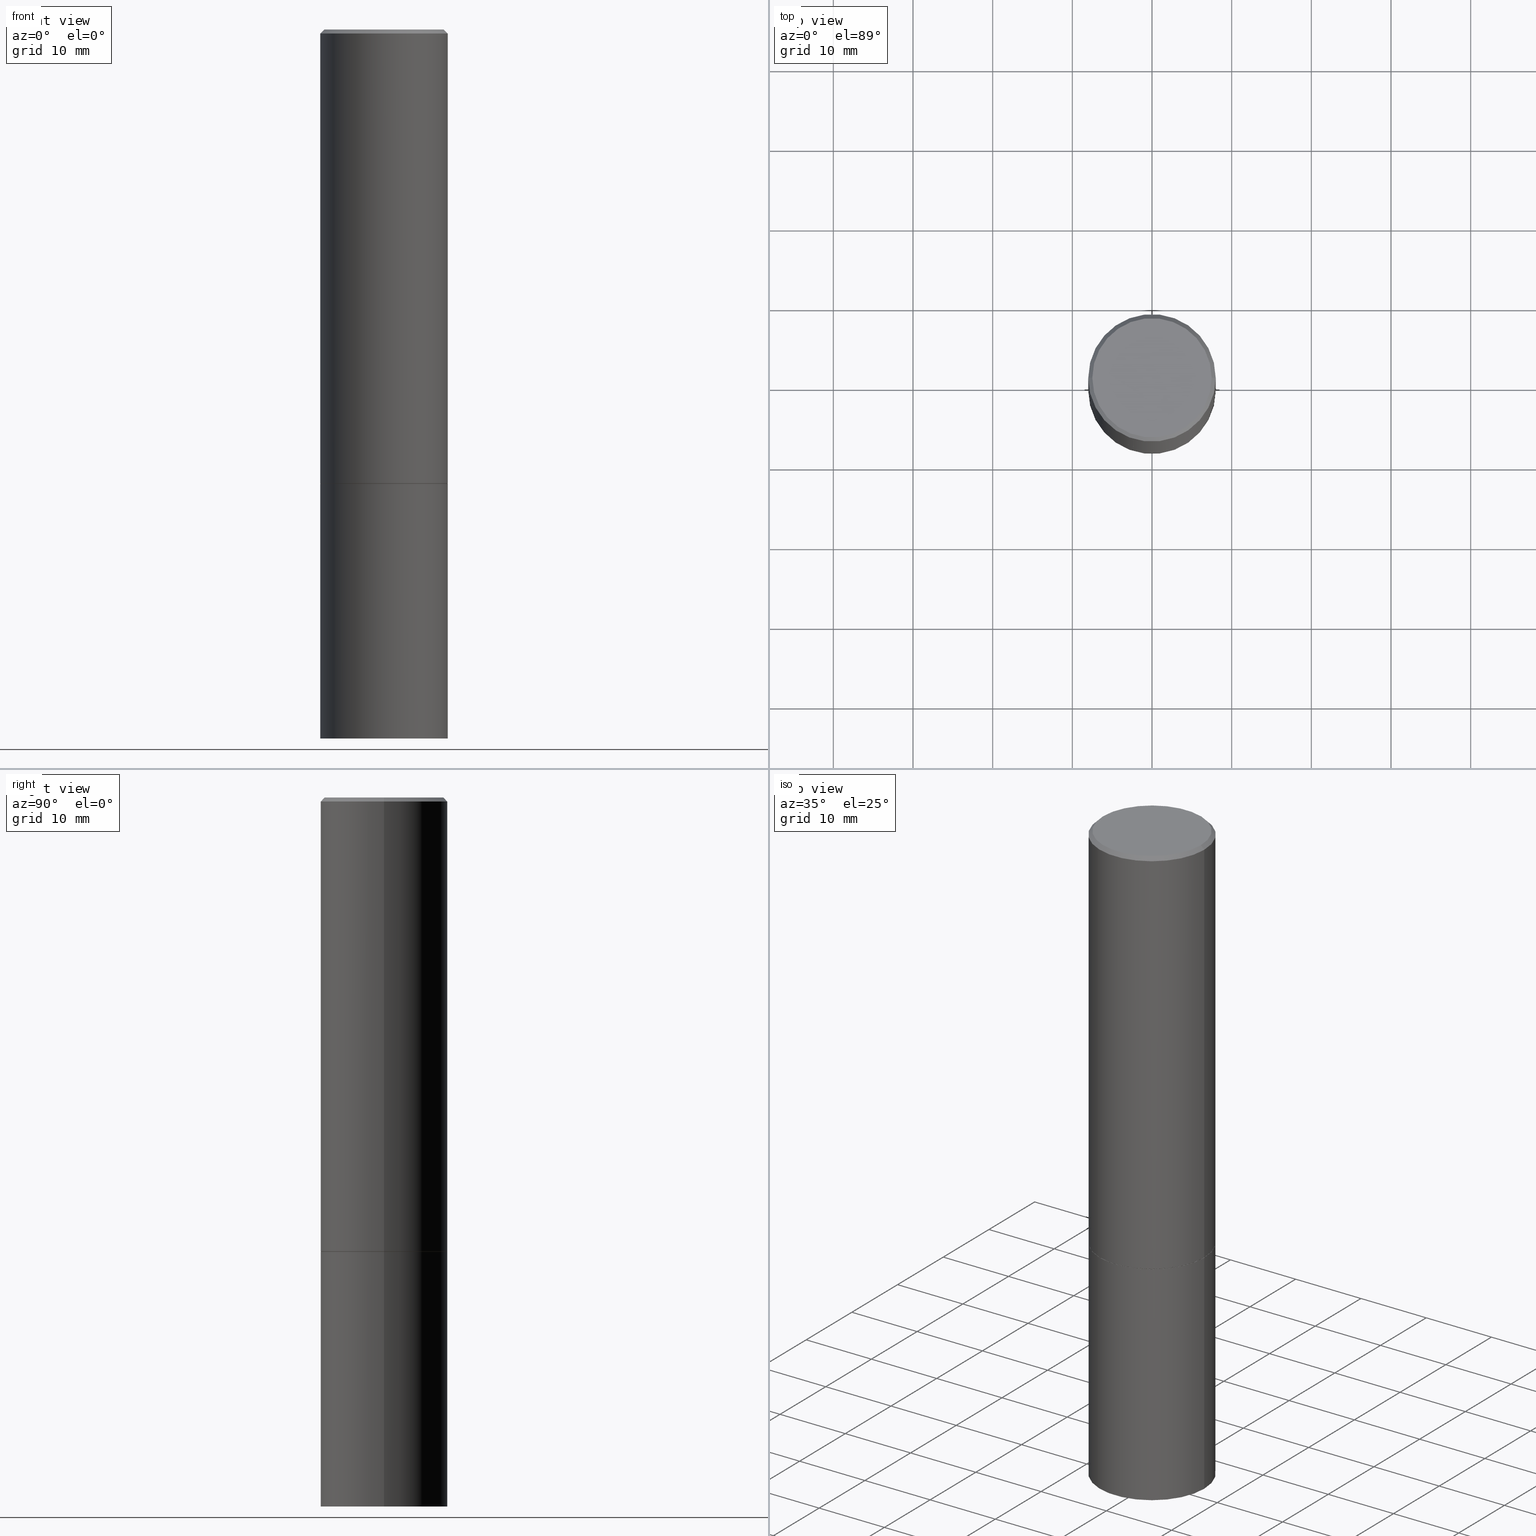
[diagram: canonical four-view strip — front | top / right | iso, engineering-drawing reading convention]
A machine part, canonical four-view strip (front | top / right | iso — engineering-drawing reading convention). The complete STEP part file that produces these views, byte-faithful:
ISO-10303-21;
HEADER;
FILE_DESCRIPTION (( 'STEP AP203' ),
    '1' );
FILE_NAME ('48517.STEP',
    '2024-02-28T11:30:29',
    ( '' ),
    ( '' ),
    'SwSTEP 2.0',
    'SolidWorks 2023',
    '' );
FILE_SCHEMA (( 'CONFIG_CONTROL_DESIGN' ));
ENDSEC;

DATA;
#1 = CARTESIAN_POINT ( 'NONE',  ( 4.890937612370290675E-31, -6.982962677686316261E-17, -0.02000000000000007327 ) ) ;
#2 = CIRCLE ( 'NONE', #277, 0.3149500000000000077 ) ;
#3 = DIRECTION ( 'NONE',  ( 0.7071067811864992780, -2.468850131081751401E-15, 0.7071067811865957564 ) ) ;
#4 = ADVANCED_FACE ( 'NONE', ( #281 ), #34, .T. ) ;
#5 = PERSON_AND_ORGANIZATION ( #238, #20 ) ;
#6 = DIRECTION ( 'NONE',  ( -0.7071067811865466846, 2.468850131082247989E-15, -0.7071067811865483499 ) ) ;
#7 = MANIFOLD_SOLID_BREP ( 'Body-Move/Copy2[2]', #203 ) ;
#8 = MANIFOLD_SOLID_BREP ( 'Body-Move/Copy2[1]', #30 ) ;
#9 = CARTESIAN_POINT ( 'NONE',  ( 2.199284095337344302E-15, 0.3149499999999921807, -2.244100000000000872 ) ) ;
#10 = CIRCLE ( 'NONE', #290, 0.3149500000000000077 ) ;
#11 = EDGE_CURVE ( 'NONE', #336, #224, #328, .T. ) ;
#12 = LOCAL_TIME ( 6, 30, 29.00000000000000000, #311 ) ;
#13 = DIRECTION ( 'NONE',  ( -2.445468806185136597E-29, 3.491481338843145583E-15, 1.000000000000000000 ) ) ;
#14 = ADVANCED_BREP_SHAPE_REPRESENTATION ( '48517', ( #8, #7, #113 ), #274 ) ;
#15 = CALENDAR_DATE ( 2024, 28, 2 ) ;
#16 = DIRECTION ( 'NONE',  ( 1.000000000000000000, -6.982962677686266711E-15, 0.000000000000000000 ) ) ;
#17 = CARTESIAN_POINT ( 'NONE',  ( 0.000000000000000000, 0.000000000000000000, 0.000000000000000000 ) ) ;
#18 = EDGE_CURVE ( 'NONE', #300, #224, #319, .T. ) ;
#19 = CC_DESIGN_SECURITY_CLASSIFICATION ( #125, ( #143 ) ) ;
#20 = ORGANIZATION ( 'UNSPECIFIED', 'UNSPECIFIED', '' ) ;
#21 = CARTESIAN_POINT ( 'NONE',  ( 0.3149499999999997302, -2.230543471175005478E-15, -0.02000000000000007327 ) ) ;
#22 = COORDINATED_UNIVERSAL_TIME_OFFSET ( 5, 0, .BEHIND. ) ;
#23 = FACE_OUTER_BOUND ( 'NONE', #134, .T. ) ;
#24 = ORIENTED_EDGE ( 'NONE', *, *, #80, .T. ) ;
#25 = CARTESIAN_POINT ( 'NONE',  ( 2.059624841783562091E-15, 0.2949499999999997124, -1.027678164646734579E-15 ) ) ;
#26 = ADVANCED_FACE ( 'NONE', ( #207 ), #68, .T. ) ;
#27 = DIRECTION ( 'NONE',  ( -0.7071067811864992780, 7.493145998870180611E-15, 0.7071067811865957564 ) ) ;
#28 = CONICAL_SURFACE ( 'NONE', #66, 0.3149499999999997302, 0.7853981633974471688 ) ;
#29 = ORIENTED_EDGE ( 'NONE', *, *, #11, .F. ) ;
#30 = CLOSED_SHELL ( 'NONE', ( #140, #4, #61, #110 ) ) ;
#31 = ORIENTED_EDGE ( 'NONE', *, *, #194, .F. ) ;
#32 = ORIENTED_EDGE ( 'NONE', *, *, #230, .T. ) ;
#33 = ORIENTED_EDGE ( 'NONE', *, *, #201, .F. ) ;
#34 = PLANE ( 'NONE',  #351 ) ;
#35 = APPROVAL_PERSON_ORGANIZATION ( #234, #133, #94 ) ;
#36 = CYLINDRICAL_SURFACE ( 'NONE', #65, 0.3149500000000000077 ) ;
#37 = DIRECTION ( 'NONE',  ( -1.000000000000000000, 6.982962677686266711E-15, 0.000000000000000000 ) ) ;
#38 = PERSON_AND_ORGANIZATION_ROLE ( 'design_owner' ) ;
#39 = DIRECTION ( 'NONE',  ( 2.438088387897960049E-29, -3.491481338843145188E-15, -1.000000000000000000 ) ) ;
#40 = CIRCLE ( 'NONE', #283, 0.3149500000000000077 ) ;
#41 = CIRCLE ( 'NONE', #284, 0.3139500000000000624 ) ;
#42 = PERSON_AND_ORGANIZATION ( #238, #20 ) ;
#43 = CARTESIAN_POINT ( 'NONE',  ( 5.487876547960064752E-29, -7.835233272497900762E-15, -2.244099999999999540 ) ) ;
#44 = CYLINDRICAL_SURFACE ( 'NONE', #253, 0.3149499999999998967 ) ;
#45 = DIRECTION ( 'NONE',  ( 1.000000000000000000, -6.982962677686266711E-15, 0.000000000000000000 ) ) ;
#46 = ORIENTED_EDGE ( 'NONE', *, *, #18, .F. ) ;
#47 = SECURITY_CLASSIFICATION_LEVEL ( 'unclassified' ) ;
#48 = CARTESIAN_POINT ( 'NONE',  ( 4.890937612370290675E-31, -6.982962677686316261E-17, -0.02000000000000007327 ) ) ;
#49 = EDGE_LOOP ( 'NONE', ( #304, #109, #195, #29 ) ) ;
#50 = EDGE_CURVE ( 'NONE', #297, #362, #10, .T. ) ;
#51 = DATE_TIME_ROLE ( 'classification_date' ) ;
#52 = DIRECTION ( 'NONE',  ( -2.445468806185136597E-29, 3.491481338843145583E-15, 1.000000000000000000 ) ) ;
#53 = CC_DESIGN_PERSON_AND_ORGANIZATION_ASSIGNMENT ( #145, #115, ( #181 ) ) ;
#54 = ORIENTED_EDGE ( 'NONE', *, *, #227, .T. ) ;
#55 = ORIENTED_EDGE ( 'NONE', *, *, #136, .T. ) ;
#56 = UNCERTAINTY_MEASURE_WITH_UNIT (LENGTH_MEASURE( 1.000000000000000082E-05 ), #278, 'distance_accuracy_value', 'NONE');
#57 = AXIS2_PLACEMENT_3D ( 'NONE', #1, #112, #316 ) ;
#58 = ORIENTED_EDGE ( 'NONE', *, *, #169, .F. ) ;
#59 = CONICAL_SURFACE ( 'NONE', #131, 0.3139500000000000624, 0.7853981633973801113 ) ;
#60 = ORIENTED_EDGE ( 'NONE', *, *, #127, .T. ) ;
#61 = ADVANCED_FACE ( 'NONE', ( #350 ), #289, .F. ) ;
#62 = EDGE_LOOP ( 'NONE', ( #219, #310 ) ) ;
#63 = CALENDAR_DATE ( 2024, 28, 2 ) ;
#64 = CARTESIAN_POINT ( 'NONE',  ( -0.3149499999999997302, 2.129454468560424601E-15, -0.02000000000000007327 ) ) ;
#65 = AXIS2_PLACEMENT_3D ( 'NONE', #254, #288, #258 ) ;
#66 = AXIS2_PLACEMENT_3D ( 'NONE', #71, #144, #37 ) ;
#67 = EDGE_CURVE ( 'NONE', #86, #362, #120, .T. ) ;
#68 = CYLINDRICAL_SURFACE ( 'NONE', #163, 0.3149499999999998967 ) ;
#69 = DIRECTION ( 'NONE',  ( -2.445468806185136877E-29, 3.491481338843145188E-15, 1.000000000000000000 ) ) ;
#70 = DATE_AND_TIME ( #15, #240 ) ;
#71 = CARTESIAN_POINT ( 'NONE',  ( 4.890937612370290675E-31, -6.982962677686316261E-17, -0.02000000000000007327 ) ) ;
#72 = CONICAL_SURFACE ( 'NONE', #78, 0.3149499999999997302, 0.7853981633974471688 ) ;
#73 = PERSON_AND_ORGANIZATION ( #238, #20 ) ;
#74 = DIRECTION ( 'NONE',  ( 1.000000000000000000, -6.982962677686266711E-15, 0.000000000000000000 ) ) ;
#75 = DIRECTION ( 'NONE',  ( 2.445468806185136597E-29, -3.491481338843145583E-15, -1.000000000000000000 ) ) ;
#76 = CARTESIAN_POINT ( 'NONE',  ( 0.3149500000000000077, -1.003102588649634920E-14, -2.243099999999999650 ) ) ;
#77 = DATE_AND_TIME ( #183, #363 ) ;
#78 = AXIS2_PLACEMENT_3D ( 'NONE', #156, #75, #128 ) ;
#79 = FACE_OUTER_BOUND ( 'NONE', #200, .T. ) ;
#80 = EDGE_CURVE ( 'NONE', #226, #129, #357, .T. ) ;
#81 = CALENDAR_DATE ( 2024, 28, 2 ) ;
#82 = DIRECTION ( 'NONE',  ( -2.445468806185136877E-29, 3.491481338843145188E-15, 1.000000000000000000 ) ) ;
#83 = CC_DESIGN_PERSON_AND_ORGANIZATION_ASSIGNMENT ( #73, #215, ( #143 ) ) ;
#84 = CC_DESIGN_APPROVAL ( #133, ( #143 ) ) ;
#85 = ORIENTED_EDGE ( 'NONE', *, *, #169, .T. ) ;
#86 = VERTEX_POINT ( 'NONE', #205 ) ;
#87 = ORIENTED_EDGE ( 'NONE', *, *, #50, .F. ) ;
#88 = CIRCLE ( 'NONE', #232, 0.3149500000000000077 ) ;
#89 = EDGE_LOOP ( 'NONE', ( #33, #160 ) ) ;
#90 = FACE_OUTER_BOUND ( 'NONE', #135, .T. ) ;
#91 = CARTESIAN_POINT ( 'NONE',  ( 0.3139500000000000624, -1.002753440515750620E-14, -2.244099999999999540 ) ) ;
#92 = DATE_AND_TIME ( #343, #12 ) ;
#93 = CARTESIAN_POINT ( 'NONE',  ( -0.3149500000000000077, 2.237854346276435590E-15, -1.549218606675782676E-29 ) ) ;
#94 = APPROVAL_ROLE ( '' ) ;
#95 = FACE_OUTER_BOUND ( 'NONE', #366, .T. ) ;
#96 = DIRECTION ( 'NONE',  ( 1.000000000000000000, -6.982962677686268288E-15, 0.000000000000000000 ) ) ;
#97 = CARTESIAN_POINT ( 'NONE',  ( -0.3149499999999998967, 2.237854346276434801E-15, -1.549218606675782116E-29 ) ) ;
#98 = CC_DESIGN_PERSON_AND_ORGANIZATION_ASSIGNMENT ( #264, #152, ( #125 ) ) ;
#99 = LINE ( 'NONE', #21, #225 ) ;
#100 = VECTOR ( 'NONE', #117, 39.37007874015748143 ) ;
#101 = CIRCLE ( 'NONE', #309, 0.3149499999999997302 ) ;
#102 = DIRECTION ( 'NONE',  ( 1.000000000000000000, -6.982962677686268288E-15, 0.000000000000000000 ) ) ;
#103 = DIRECTION ( 'NONE',  ( 1.000000000000000000, -6.982962677686266711E-15, 0.000000000000000000 ) ) ;
#104 =( NAMED_UNIT ( * ) PLANE_ANGLE_UNIT ( ) SI_UNIT ( $, .RADIAN. ) );
#105 = ORIENTED_EDGE ( 'NONE', *, *, #217, .F. ) ;
#106 =( NAMED_UNIT ( * ) SI_UNIT ( $, .STERADIAN. ) SOLID_ANGLE_UNIT ( ) );
#107 = CONICAL_SURFACE ( 'NONE', #192, 0.3139500000000000624, 0.7853981633973801113 ) ;
#108 = ORIENTED_EDGE ( 'NONE', *, *, #280, .T. ) ;
#109 = ORIENTED_EDGE ( 'NONE', *, *, #271, .T. ) ;
#110 = ADVANCED_FACE ( 'NONE', ( #90 ), #151, .T. ) ;
#111 = ORIENTED_EDGE ( 'NONE', *, *, #136, .F. ) ;
#112 = DIRECTION ( 'NONE',  ( -2.445468806185136597E-29, 3.491481338843145583E-15, 1.000000000000000000 ) ) ;
#113 = AXIS2_PLACEMENT_3D ( 'NONE', #170, #318, #199 ) ;
#114 = CARTESIAN_POINT ( 'NONE',  ( -0.2949499999999997124, 2.094539655171993740E-15, 4.268512490085885145E-18 ) ) ;
#115 = PERSON_AND_ORGANIZATION_ROLE ( 'creator' ) ;
#116 = LINE ( 'NONE', #91, #334 ) ;
#117 = DIRECTION ( 'NONE',  ( -2.445468806185136877E-29, 3.491481338843145188E-15, 1.000000000000000000 ) ) ;
#118 = VECTOR ( 'NONE', #27, 39.37007874015748143 ) ;
#119 = APPROVAL_STATUS ( 'not_yet_approved' ) ;
#120 = LINE ( 'NONE', #93, #100 ) ;
#121 = PERSON_AND_ORGANIZATION ( #238, #20 ) ;
#122 = CARTESIAN_POINT ( 'NONE',  ( 0.000000000000000000, 0.000000000000000000, 0.000000000000000000 ) ) ;
#123 = FACE_OUTER_BOUND ( 'NONE', #196, .T. ) ;
#124 = AXIS2_PLACEMENT_3D ( 'NONE', #292, #13, #148 ) ;
#125 = SECURITY_CLASSIFICATION ( '', '', #47 ) ;
#126 = DIRECTION ( 'NONE',  ( -2.445468806185136877E-29, 3.491481338843145188E-15, 1.000000000000000000 ) ) ;
#127 = EDGE_CURVE ( 'NONE', #86, #161, #40, .T. ) ;
#128 = DIRECTION ( 'NONE',  ( -1.000000000000000000, 6.982962677686266711E-15, 0.000000000000000000 ) ) ;
#129 = VERTEX_POINT ( 'NONE', #349 ) ;
#130 = DIRECTION ( 'NONE',  ( 2.438088387897960049E-29, -3.491481338843145188E-15, -1.000000000000000000 ) ) ;
#131 = AXIS2_PLACEMENT_3D ( 'NONE', #241, #155, #295 ) ;
#132 = CARTESIAN_POINT ( 'NONE',  ( 8.568678149992099474E-29, -1.223380146317249786E-14, -3.503899999999999793 ) ) ;
#133 = APPROVAL ( #347, 'UNSPECIFIED' ) ;
#134 = EDGE_LOOP ( 'NONE', ( #166, #249, #55, #338 ) ) ;
#135 = EDGE_LOOP ( 'NONE', ( #223, #60, #32, #105 ) ) ;
#136 = EDGE_CURVE ( 'NONE', #226, #336, #229, .T. ) ;
#137 = ORIENTED_EDGE ( 'NONE', *, *, #323, .T. ) ;
#138 = CARTESIAN_POINT ( 'NONE',  ( 2.199284095337375068E-15, 0.3149499999999877953, -3.503900000000000681 ) ) ;
#139 = APPLICATION_PROTOCOL_DEFINITION ( 'international standard', 'config_control_design', 1994, #317 ) ;
#140 = ADVANCED_FACE ( 'NONE', ( #95 ), #36, .T. ) ;
#141 = AXIS2_PLACEMENT_3D ( 'NONE', #9, #39, #173 ) ;
#142 = CARTESIAN_POINT ( 'NONE',  ( -1.043851414335219820E-46, 1.490343170380447200E-32, 4.268512490100411279E-18 ) ) ;
#143 = PRODUCT_DEFINITION_FORMATION_WITH_SPECIFIED_SOURCE ( 'ANY', '', #320, .NOT_KNOWN. ) ;
#144 = DIRECTION ( 'NONE',  ( 2.445468806185136597E-29, -3.491481338843145583E-15, -1.000000000000000000 ) ) ;
#145 = PERSON_AND_ORGANIZATION ( #238, #20 ) ;
#146 = DIRECTION ( 'NONE',  ( 1.000000000000000000, -6.982962677686267499E-15, 4.876053491004739391E-29 ) ) ;
#147 = APPROVAL_ROLE ( '' ) ;
#148 = DIRECTION ( 'NONE',  ( 1.000000000000000000, -6.982962677686266711E-15, 4.876176775795936353E-29 ) ) ;
#149 = AXIS2_PLACEMENT_3D ( 'NONE', #242, #186, #294 ) ;
#150 = CC_DESIGN_PERSON_AND_ORGANIZATION_ASSIGNMENT ( #42, #38, ( #320 ) ) ;
#151 = CYLINDRICAL_SURFACE ( 'NONE', #124, 0.3149500000000000077 ) ;
#152 = PERSON_AND_ORGANIZATION_ROLE ( 'classification_officer' ) ;
#153 = CARTESIAN_POINT ( 'NONE',  ( 5.487876547960064752E-29, -7.835233272497900762E-15, -2.244099999999999540 ) ) ;
#154 = DIRECTION ( 'NONE',  ( -2.445468806185136597E-29, 3.491481338843145583E-15, 1.000000000000000000 ) ) ;
#155 = DIRECTION ( 'NONE',  ( -2.445468806185136597E-29, 3.491481338843145583E-15, 1.000000000000000000 ) ) ;
#156 = CARTESIAN_POINT ( 'NONE',  ( 4.890937612370290675E-31, -6.982962677686316261E-17, -0.02000000000000007327 ) ) ;
#157 = CARTESIAN_POINT ( 'NONE',  ( 0.3149500000000000077, -1.003451736783519063E-14, -2.244099999999999540 ) ) ;
#158 = VECTOR ( 'NONE', #6, 39.37007874015748143 ) ;
#159 = VECTOR ( 'NONE', #126, 39.37007874015748143 ) ;
#160 = ORIENTED_EDGE ( 'NONE', *, *, #227, .F. ) ;
#161 = VERTEX_POINT ( 'NONE', #346 ) ;
#162 = EDGE_CURVE ( 'NONE', #279, #300, #116, .T. ) ;
#163 = AXIS2_PLACEMENT_3D ( 'NONE', #122, #202, #174 ) ;
#164 = APPROVAL_PERSON_ORGANIZATION ( #5, #257, #147 ) ;
#165 = EDGE_LOOP ( 'NONE', ( #85, #137, #212, #46 ) ) ;
#166 = ORIENTED_EDGE ( 'NONE', *, *, #280, .F. ) ;
#167 = MECHANICAL_CONTEXT ( 'NONE', #246, 'mechanical' ) ;
#168 = ORIENTED_EDGE ( 'NONE', *, *, #348, .T. ) ;
#169 = EDGE_CURVE ( 'NONE', #300, #222, #171, .T. ) ;
#170 = CARTESIAN_POINT ( 'NONE',  ( 0.000000000000000000, 0.000000000000000000, 0.000000000000000000 ) ) ;
#171 = CIRCLE ( 'NONE', #220, 0.3149500000000000077 ) ;
#172 = CARTESIAN_POINT ( 'NONE',  ( 5.485431079153879149E-29, -7.831741791159059333E-15, -2.243099999999999650 ) ) ;
#173 = DIRECTION ( 'NONE',  ( -1.000000000000000000, 6.982962677686265922E-15, -4.876176775795935793E-29 ) ) ;
#174 = DIRECTION ( 'NONE',  ( 1.000000000000000000, -6.982962677686265922E-15, 4.876176775795935232E-29 ) ) ;
#175 = ADVANCED_FACE ( 'NONE', ( #322 ), #28, .T. ) ;
#176 = APPROVAL_DATE_TIME ( #70, #133 ) ;
#177 = CARTESIAN_POINT ( 'NONE',  ( 5.487876547960064752E-29, -7.835233272497900762E-15, -2.244099999999999540 ) ) ;
#178 = CIRCLE ( 'NONE', #269, 0.2949499999999997124 ) ;
#179 = AXIS2_PLACEMENT_3D ( 'NONE', #132, #359, #218 ) ;
#180 = CARTESIAN_POINT ( 'NONE',  ( -0.3149500000000000077, -1.712931362691523950E-15, -2.243099999999999650 ) ) ;
#181 = PRODUCT_DEFINITION ( 'UNKNOWN', '', #143, #188 ) ;
#182 = CARTESIAN_POINT ( 'NONE',  ( -0.3139500000000000624, -5.599185899230844172E-15, -2.244099999999999540 ) ) ;
#183 = CALENDAR_DATE ( 2024, 28, 2 ) ;
#184 = CARTESIAN_POINT ( 'NONE',  ( 0.3149500000000000077, -2.199284095337289871E-15, 1.535751875536930130E-29 ) ) ;
#185 = EDGE_LOOP ( 'NONE', ( #24, #361 ) ) ;
#186 = DIRECTION ( 'NONE',  ( -2.445468806185136597E-29, 3.491481338843145583E-15, 1.000000000000000000 ) ) ;
#187 = DATE_AND_TIME ( #81, #221 ) ;
#188 = DESIGN_CONTEXT ( 'detailed design', #317, 'design' ) ;
#189 = LINE ( 'NONE', #301, #118 ) ;
#190 = CC_DESIGN_DATE_AND_TIME_ASSIGNMENT ( #77, #51, ( #125 ) ) ;
#191 = FACE_OUTER_BOUND ( 'NONE', #165, .T. ) ;
#192 = AXIS2_PLACEMENT_3D ( 'NONE', #153, #273, #102 ) ;
#193 = EDGE_LOOP ( 'NONE', ( #275, #250 ) ) ;
#194 = EDGE_CURVE ( 'NONE', #129, #226, #178, .T. ) ;
#195 = ORIENTED_EDGE ( 'NONE', *, *, #18, .T. ) ;
#196 = EDGE_LOOP ( 'NONE', ( #276, #54, #198, #333 ) ) ;
#197 = CIRCLE ( 'NONE', #179, 0.3149500000000000077 ) ;
#198 = ORIENTED_EDGE ( 'NONE', *, *, #162, .T. ) ;
#199 = DIRECTION ( 'NONE',  ( 1.000000000000000000, 0.000000000000000000, 0.000000000000000000 ) ) ;
#200 = EDGE_LOOP ( 'NONE', ( #305, #248, #58, #365 ) ) ;
#201 = EDGE_CURVE ( 'NONE', #279, #282, #41, .T. ) ;
#202 = DIRECTION ( 'NONE',  ( -2.445468806185136597E-29, 3.491481338843145583E-15, 1.000000000000000000 ) ) ;
#203 = CLOSED_SHELL ( 'NONE', ( #285, #364, #175, #296, #26, #307, #243, #332 ) ) ;
#204 = DIRECTION ( 'NONE',  ( -2.445468806185136597E-29, 3.491481338843145583E-15, 1.000000000000000000 ) ) ;
#205 = CARTESIAN_POINT ( 'NONE',  ( -0.3149500000000000077, -7.796663021558764114E-15, -3.503899999999999793 ) ) ;
#206 = DIMENSIONAL_EXPONENTS ( 1.000000000000000000, 0.000000000000000000, 0.000000000000000000, 0.000000000000000000, 0.000000000000000000, 0.000000000000000000, 0.000000000000000000 ) ;
#207 = FACE_OUTER_BOUND ( 'NONE', #49, .T. ) ;
#208 = DIRECTION ( 'NONE',  ( -2.445468806185136597E-29, 3.491481338843145583E-15, 1.000000000000000000 ) ) ;
#209 = PERSON_AND_ORGANIZATION_ROLE ( 'creator' ) ;
#210 =( LENGTH_UNIT ( ) NAMED_UNIT ( * ) SI_UNIT ( $, .METRE. ) );
#211 = LINE ( 'NONE', #184, #159 ) ;
#212 = ORIENTED_EDGE ( 'NONE', *, *, #265, .F. ) ;
#213 = PLANE ( 'NONE',  #352 ) ;
#214 = CC_DESIGN_APPROVAL ( #303, ( #125 ) ) ;
#215 = PERSON_AND_ORGANIZATION_ROLE ( 'design_supplier' ) ;
#216 = CARTESIAN_POINT ( 'NONE',  ( -0.3149499999999997302, 2.129454468560424601E-15, -0.02000000000000007327 ) ) ;
#217 = EDGE_CURVE ( 'NONE', #362, #297, #88, .T. ) ;
#218 = DIRECTION ( 'NONE',  ( 1.000000000000000000, -6.982962677686263555E-15, 0.000000000000000000 ) ) ;
#219 = ORIENTED_EDGE ( 'NONE', *, *, #50, .T. ) ;
#220 = AXIS2_PLACEMENT_3D ( 'NONE', #172, #204, #16 ) ;
#221 = LOCAL_TIME ( 6, 30, 29.00000000000000000, #22 ) ;
#222 = VERTEX_POINT ( 'NONE', #180 ) ;
#223 = ORIENTED_EDGE ( 'NONE', *, *, #67, .F. ) ;
#224 = VERTEX_POINT ( 'NONE', #293 ) ;
#225 = VECTOR ( 'NONE', #356, 39.37007874015748143 ) ;
#226 = VERTEX_POINT ( 'NONE', #114 ) ;
#227 = EDGE_CURVE ( 'NONE', #282, #279, #291, .T. ) ;
#228 = CARTESIAN_POINT ( 'NONE',  ( 0.3149499999999998967, -2.199284095337288688E-15, 1.535751875536929289E-29 ) ) ;
#229 = LINE ( 'NONE', #64, #158 ) ;
#230 = EDGE_CURVE ( 'NONE', #161, #297, #211, .T. ) ;
#231 = DATE_AND_TIME ( #63, #302 ) ;
#232 = AXIS2_PLACEMENT_3D ( 'NONE', #43, #233, #74 ) ;
#233 = DIRECTION ( 'NONE',  ( -2.445468806185136597E-29, 3.491481338843145583E-15, 1.000000000000000000 ) ) ;
#234 = PERSON_AND_ORGANIZATION ( #238, #20 ) ;
#235 = DIRECTION ( 'NONE',  ( 1.000000000000000000, -6.982962677686263555E-15, 0.000000000000000000 ) ) ;
#236 = DIRECTION ( 'NONE',  ( -2.445468806185136597E-29, 3.491481338843145583E-15, 1.000000000000000000 ) ) ;
#237 = APPROVAL_ROLE ( '' ) ;
#238 = PERSON ( 'UNSPECIFIED', 'UNSPECIFIED', 'UNSPECIFIED', ('UNSPECIFIED'), ('UNSPECIFIED'), ('UNSPECIFIED') ) ;
#239 = DIRECTION ( 'NONE',  ( 1.000000000000000000, -6.982962677686265922E-15, 4.876176775795935232E-29 ) ) ;
#240 = LOCAL_TIME ( 6, 30, 29.00000000000000000, #321 ) ;
#241 = CARTESIAN_POINT ( 'NONE',  ( 5.487876547960064752E-29, -7.835233272497900762E-15, -2.244099999999999540 ) ) ;
#242 = CARTESIAN_POINT ( 'NONE',  ( 5.487876547960064752E-29, -7.835233272497900762E-15, -2.244099999999999540 ) ) ;
#243 = ADVANCED_FACE ( 'NONE', ( #245 ), #213, .F. ) ;
#244 = DIRECTION ( 'NONE',  ( -1.000000000000000000, 6.982962677686265922E-15, -4.876176775795935793E-29 ) ) ;
#245 = FACE_OUTER_BOUND ( 'NONE', #89, .T. ) ;
#246 = APPLICATION_CONTEXT ( 'configuration controlled 3d designs of mechanical parts and assemblies' ) ;
#247 = DIRECTION ( 'NONE',  ( 2.438088387897960049E-29, -3.491481338843145188E-15, -1.000000000000000000 ) ) ;
#248 = ORIENTED_EDGE ( 'NONE', *, *, #337, .T. ) ;
#249 = ORIENTED_EDGE ( 'NONE', *, *, #80, .F. ) ;
#250 = ORIENTED_EDGE ( 'NONE', *, *, #127, .F. ) ;
#251 = CC_DESIGN_DATE_AND_TIME_ASSIGNMENT ( #92, #259, ( #181 ) ) ;
#252 = DIRECTION ( 'NONE',  ( -1.000000000000000000, 6.982962677686265922E-15, -4.876176775795935793E-29 ) ) ;
#253 = AXIS2_PLACEMENT_3D ( 'NONE', #17, #154, #239 ) ;
#254 = CARTESIAN_POINT ( 'NONE',  ( 0.000000000000000000, 0.000000000000000000, 0.000000000000000000 ) ) ;
#255 = APPLICATION_PROTOCOL_DEFINITION ( 'international standard', 'config_control_design', 1994, #246 ) ;
#256 = DIRECTION ( 'NONE',  ( -2.445468806185136597E-29, 3.491481338843145583E-15, 1.000000000000000000 ) ) ;
#257 = APPROVAL ( #119, 'UNSPECIFIED' ) ;
#258 = DIRECTION ( 'NONE',  ( 1.000000000000000000, -6.982962677686266711E-15, 4.876176775795936353E-29 ) ) ;
#259 = DATE_TIME_ROLE ( 'creation_date' ) ;
#260 = VECTOR ( 'NONE', #69, 39.37007874015748143 ) ;
#261 = CARTESIAN_POINT ( 'NONE',  ( -1.043851414335219820E-46, 1.490343170380447200E-32, 4.268512490100411279E-18 ) ) ;
#262 = PRODUCT_DEFINITION_SHAPE ( 'NONE', 'NONE',  #181 ) ;
#263 = DIRECTION ( 'NONE',  ( -2.445468806185136597E-29, 3.491481338843145583E-15, 1.000000000000000000 ) ) ;
#264 = PERSON_AND_ORGANIZATION ( #238, #20 ) ;
#265 = EDGE_CURVE ( 'NONE', #224, #336, #101, .T. ) ;
#266 = CARTESIAN_POINT ( 'NONE',  ( 5.485431079153879149E-29, -7.831741791159059333E-15, -2.243099999999999650 ) ) ;
#267 = APPROVAL_DATE_TIME ( #187, #303 ) ;
#268 = LENGTH_MEASURE_WITH_UNIT ( LENGTH_MEASURE( 0.02539999999999999897 ), #210 );
#269 = AXIS2_PLACEMENT_3D ( 'NONE', #261, #236, #146 ) ;
#270 = CARTESIAN_POINT ( 'NONE',  ( 5.487876547960064752E-29, -7.835233272497900762E-15, -2.244099999999999540 ) ) ;
#271 = EDGE_CURVE ( 'NONE', #222, #300, #2, .T. ) ;
#272 = PLANE ( 'NONE',  #358 ) ;
#273 = DIRECTION ( 'NONE',  ( -2.445468806185136597E-29, 3.491481338843145583E-15, 1.000000000000000000 ) ) ;
#274 =( GEOMETRIC_REPRESENTATION_CONTEXT ( 3 ) GLOBAL_UNCERTAINTY_ASSIGNED_CONTEXT ( ( #56 ) ) GLOBAL_UNIT_ASSIGNED_CONTEXT ( ( #278, #104, #106 ) ) REPRESENTATION_CONTEXT ( 'NONE', 'WORKASPACE' ) );
#275 = ORIENTED_EDGE ( 'NONE', *, *, #348, .F. ) ;
#276 = ORIENTED_EDGE ( 'NONE', *, *, #337, .F. ) ;
#277 = AXIS2_PLACEMENT_3D ( 'NONE', #266, #330, #45 ) ;
#278 =( CONVERSION_BASED_UNIT ( 'INCH', #268 ) LENGTH_UNIT ( ) NAMED_UNIT ( #206 ) );
#279 = VERTEX_POINT ( 'NONE', #327 ) ;
#280 = EDGE_CURVE ( 'NONE', #129, #224, #99, .T. ) ;
#281 = FACE_OUTER_BOUND ( 'NONE', #193, .T. ) ;
#282 = VERTEX_POINT ( 'NONE', #182 ) ;
#283 = AXIS2_PLACEMENT_3D ( 'NONE', #342, #324, #235 ) ;
#284 = AXIS2_PLACEMENT_3D ( 'NONE', #177, #256, #96 ) ;
#285 = ADVANCED_FACE ( 'NONE', ( #79 ), #59, .T. ) ;
#286 = DIRECTION ( 'NONE',  ( 1.000000000000000000, -6.982962677686267499E-15, 4.876053491004739391E-29 ) ) ;
#287 = COORDINATED_UNIVERSAL_TIME_OFFSET ( 5, 0, .BEHIND. ) ;
#288 = DIRECTION ( 'NONE',  ( -2.445468806185136597E-29, 3.491481338843145583E-15, 1.000000000000000000 ) ) ;
#289 = PLANE ( 'NONE',  #141 ) ;
#290 = AXIS2_PLACEMENT_3D ( 'NONE', #344, #208, #314 ) ;
#291 = CIRCLE ( 'NONE', #149, 0.3139500000000000624 ) ;
#292 = CARTESIAN_POINT ( 'NONE',  ( 0.000000000000000000, 0.000000000000000000, 0.000000000000000000 ) ) ;
#293 = CARTESIAN_POINT ( 'NONE',  ( 0.3149499999999997302, -2.230543471175005478E-15, -0.02000000000000007327 ) ) ;
#294 = DIRECTION ( 'NONE',  ( 1.000000000000000000, -6.982962677686268288E-15, 0.000000000000000000 ) ) ;
#295 = DIRECTION ( 'NONE',  ( 1.000000000000000000, -6.982962677686268288E-15, 0.000000000000000000 ) ) ;
#296 = ADVANCED_FACE ( 'NONE', ( #23 ), #72, .T. ) ;
#297 = VERTEX_POINT ( 'NONE', #157 ) ;
#298 = COORDINATED_UNIVERSAL_TIME_OFFSET ( 5, 0, .BEHIND. ) ;
#299 = DIRECTION ( 'NONE',  ( -2.438088387897960049E-29, 3.491481338843145188E-15, 1.000000000000000000 ) ) ;
#300 = VERTEX_POINT ( 'NONE', #76 ) ;
#301 = CARTESIAN_POINT ( 'NONE',  ( -0.3139500000000000624, -5.604484353579066574E-15, -2.244099999999999540 ) ) ;
#302 = LOCAL_TIME ( 6, 30, 29.00000000000000000, #287 ) ;
#303 = APPROVAL ( #329, 'UNSPECIFIED' ) ;
#304 = ORIENTED_EDGE ( 'NONE', *, *, #323, .F. ) ;
#305 = ORIENTED_EDGE ( 'NONE', *, *, #201, .T. ) ;
#306 = ORIENTED_EDGE ( 'NONE', *, *, #265, .T. ) ;
#307 = ADVANCED_FACE ( 'NONE', ( #123 ), #107, .T. ) ;
#308 = AXIS2_PLACEMENT_3D ( 'NONE', #142, #263, #286 ) ;
#309 = AXIS2_PLACEMENT_3D ( 'NONE', #48, #52, #103 ) ;
#310 = ORIENTED_EDGE ( 'NONE', *, *, #217, .T. ) ;
#311 = COORDINATED_UNIVERSAL_TIME_OFFSET ( 5, 0, .BEHIND. ) ;
#312 = ORIENTED_EDGE ( 'NONE', *, *, #67, .T. ) ;
#313 = PRODUCT_RELATED_PRODUCT_CATEGORY ( 'detail', '', ( #320 ) ) ;
#314 = DIRECTION ( 'NONE',  ( 1.000000000000000000, -6.982962677686266711E-15, 0.000000000000000000 ) ) ;
#315 = CC_DESIGN_APPROVAL ( #257, ( #181 ) ) ;
#316 = DIRECTION ( 'NONE',  ( 1.000000000000000000, -6.982962677686266711E-15, 0.000000000000000000 ) ) ;
#317 = APPLICATION_CONTEXT ( 'configuration controlled 3d designs of mechanical parts and assemblies' ) ;
#318 = DIRECTION ( 'NONE',  ( 0.000000000000000000, 0.000000000000000000, 1.000000000000000000 ) ) ;
#319 = LINE ( 'NONE', #228, #260 ) ;
#320 = PRODUCT ( '48517', '48517', '', ( #167 ) ) ;
#321 = COORDINATED_UNIVERSAL_TIME_OFFSET ( 5, 0, .BEHIND. ) ;
#322 = FACE_OUTER_BOUND ( 'NONE', #341, .T. ) ;
#323 = EDGE_CURVE ( 'NONE', #222, #336, #353, .T. ) ;
#324 = DIRECTION ( 'NONE',  ( -2.445468806185136597E-29, 3.491481338843145583E-15, 1.000000000000000000 ) ) ;
#325 = SHAPE_DEFINITION_REPRESENTATION ( #262, #14 ) ;
#326 = DIRECTION ( 'NONE',  ( 1.000000000000000000, -6.982962677686265922E-15, 4.876176775795935793E-29 ) ) ;
#327 = CARTESIAN_POINT ( 'NONE',  ( 0.3139500000000000624, -1.002753440515750620E-14, -2.244099999999999540 ) ) ;
#328 = CIRCLE ( 'NONE', #57, 0.3149499999999997302 ) ;
#329 = APPROVAL_STATUS ( 'not_yet_approved' ) ;
#330 = DIRECTION ( 'NONE',  ( -2.445468806185136597E-29, 3.491481338843145583E-15, 1.000000000000000000 ) ) ;
#331 = CARTESIAN_POINT ( 'NONE',  ( -0.3149500000000000077, -7.796663021558764114E-15, -2.244099999999999540 ) ) ;
#332 = ADVANCED_FACE ( 'NONE', ( #355 ), #272, .F. ) ;
#333 = ORIENTED_EDGE ( 'NONE', *, *, #271, .F. ) ;
#334 = VECTOR ( 'NONE', #3, 39.37007874015748143 ) ;
#335 = APPROVAL_PERSON_ORGANIZATION ( #354, #303, #237 ) ;
#336 = VERTEX_POINT ( 'NONE', #216 ) ;
#337 = EDGE_CURVE ( 'NONE', #282, #222, #189, .T. ) ;
#338 = ORIENTED_EDGE ( 'NONE', *, *, #11, .T. ) ;
#339 = ORIENTED_EDGE ( 'NONE', *, *, #230, .F. ) ;
#340 = VECTOR ( 'NONE', #82, 39.37007874015748143 ) ;
#341 = EDGE_LOOP ( 'NONE', ( #31, #108, #306, #111 ) ) ;
#342 = CARTESIAN_POINT ( 'NONE',  ( 8.568678149992099474E-29, -1.223380146317249786E-14, -3.503899999999999793 ) ) ;
#343 = CALENDAR_DATE ( 2024, 28, 2 ) ;
#344 = CARTESIAN_POINT ( 'NONE',  ( 5.487876547960064752E-29, -7.835233272497900762E-15, -2.244099999999999540 ) ) ;
#345 = APPROVAL_DATE_TIME ( #231, #257 ) ;
#346 = CARTESIAN_POINT ( 'NONE',  ( 0.3149500000000000077, -1.443308555850978615E-14, -3.503899999999999793 ) ) ;
#347 = APPROVAL_STATUS ( 'not_yet_approved' ) ;
#348 = EDGE_CURVE ( 'NONE', #161, #86, #197, .T. ) ;
#349 = CARTESIAN_POINT ( 'NONE',  ( 0.2949499999999997124, -2.127023677808858103E-15, 4.268512490115050658E-18 ) ) ;
#350 = FACE_OUTER_BOUND ( 'NONE', #62, .T. ) ;
#351 = AXIS2_PLACEMENT_3D ( 'NONE', #138, #247, #252 ) ;
#352 = AXIS2_PLACEMENT_3D ( 'NONE', #270, #299, #326 ) ;
#353 = LINE ( 'NONE', #97, #340 ) ;
#354 = PERSON_AND_ORGANIZATION ( #238, #20 ) ;
#355 = FACE_OUTER_BOUND ( 'NONE', #185, .T. ) ;
#356 = DIRECTION ( 'NONE',  ( 0.7071067811865466846, -7.319954787623252890E-15, -0.7071067811865483499 ) ) ;
#357 = CIRCLE ( 'NONE', #308, 0.2949499999999997124 ) ;
#358 = AXIS2_PLACEMENT_3D ( 'NONE', #25, #130, #244 ) ;
#359 = DIRECTION ( 'NONE',  ( -2.445468806185136597E-29, 3.491481338843145583E-15, 1.000000000000000000 ) ) ;
#360 = CC_DESIGN_PERSON_AND_ORGANIZATION_ASSIGNMENT ( #121, #209, ( #143 ) ) ;
#361 = ORIENTED_EDGE ( 'NONE', *, *, #194, .T. ) ;
#362 = VERTEX_POINT ( 'NONE', #331 ) ;
#363 = LOCAL_TIME ( 6, 30, 29.00000000000000000, #298 ) ;
#364 = ADVANCED_FACE ( 'NONE', ( #191 ), #44, .T. ) ;
#365 = ORIENTED_EDGE ( 'NONE', *, *, #162, .F. ) ;
#366 = EDGE_LOOP ( 'NONE', ( #168, #312, #87, #339 ) ) ;
ENDSEC;
END-ISO-10303-21;
